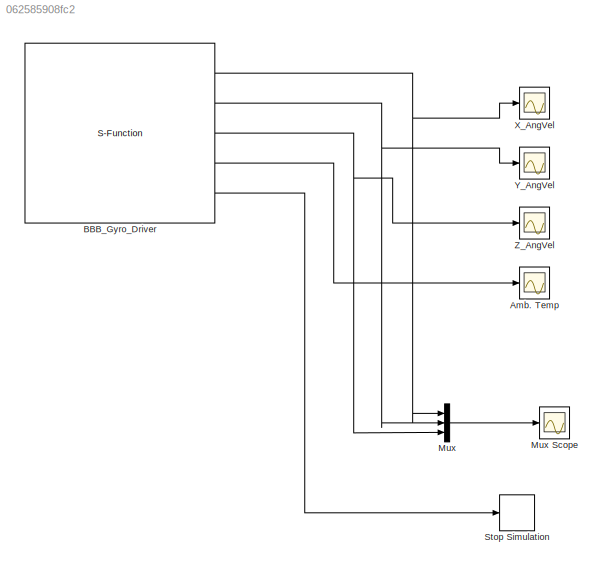
MODEL slx_062585908fc2
KIND model
BLOCK [Scope] Amb. Temp
  DataFormat = StructureWithTime
  Floating = off
  NumInputPorts = 1
  Ports = [1]
  SampleTime = 0
  SaveName = ScopeData3
  ShowLegends = off
  YMax = 16.8
  YMin = 15.2
BLOCK [S-Function] BBB_Gyro_Driver 
  EnableBusSupport = off
  FunctionName = BBB_Driver_Gyroscope_L3G4200D
  Parameters = uint8(BBB_I2CBus),uint8(BBB_I2CAddress),uint8(BBB_GyroRange),uint8(BBB_DebugInfo)
  Ports = [0, 5]
  SFunctionModules = BBB_Driver_Gyroscope_L3G4200D_wrapper
BLOCK [Mux] Mux
  DisplayOption = bar
  Inputs = 3
  Ports = [3, 1]
BLOCK [Scope] Mux Scope
  DataFormat = StructureWithTime
  Floating = off
  LegendLocations = 0.772     0.72054     0.13143     0.12072
  NumInputPorts = 1
  Ports = [1]
  SampleTime = 0
  SaveName = ScopeData4
  ShowLegends = on
  TimeRange = 20
  YMax = 175
  YMin = -150
BLOCK [Stop] Stop Simulation
BLOCK [Scope] X_AngVel
  DataFormat = StructureWithTime
  Floating = off
  NumInputPorts = 1
  Ports = [1]
  SampleTime = 0
  ShowLegends = off
  TimeRange = 10
  YMax = 250
  YMin = -300
BLOCK [Scope] Y_AngVel
  DataFormat = StructureWithTime
  Floating = off
  NumInputPorts = 1
  Ports = [1]
  SampleTime = 0
  SaveName = ScopeData1
  ShowLegends = off
  YMax = 300
  YMin = -300
BLOCK [Scope] Z_AngVel
  DataFormat = StructureWithTime
  Floating = off
  NumInputPorts = 1
  Ports = [1]
  SampleTime = 0
  SaveName = ScopeData2
  ShowLegends = off
  YMax = 250
  YMin = -300
NET BBB_Gyro_Driver :1 -> Mux:1, X_AngVel:1
NET BBB_Gyro_Driver :2 -> Mux:2, Y_AngVel:1
NET BBB_Gyro_Driver :3 -> Mux:3, Z_AngVel:1
LINE BBB_Gyro_Driver :4 -> Amb. Temp:1
LINE BBB_Gyro_Driver :5 -> Stop Simulation:1
LINE Mux:1 -> Mux Scope:1
note: NET lines group one-source signal fan-out (src -> all destinations, sorted); 1:1 wires keep LINE
